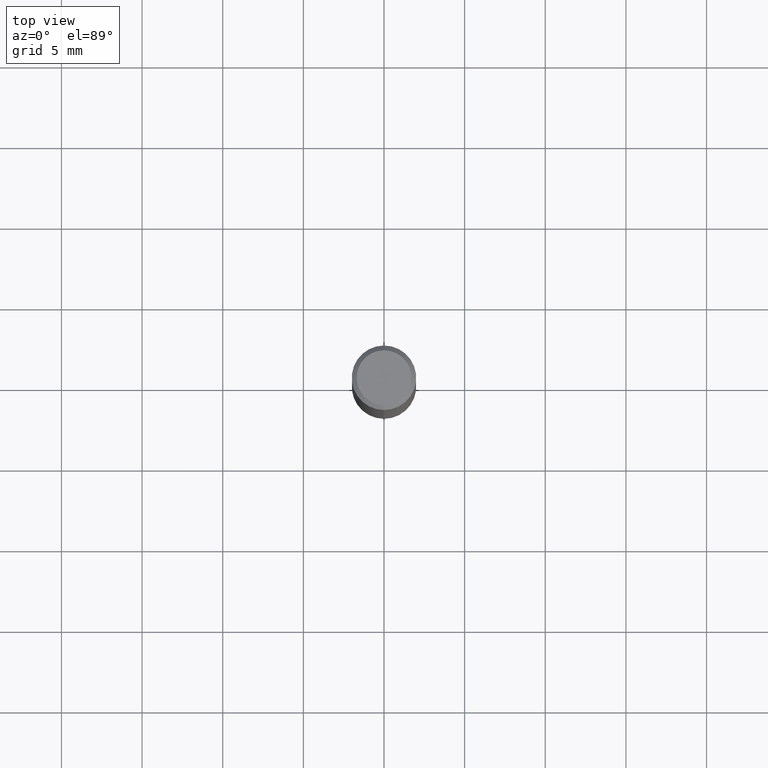
[diagram: clean part render]
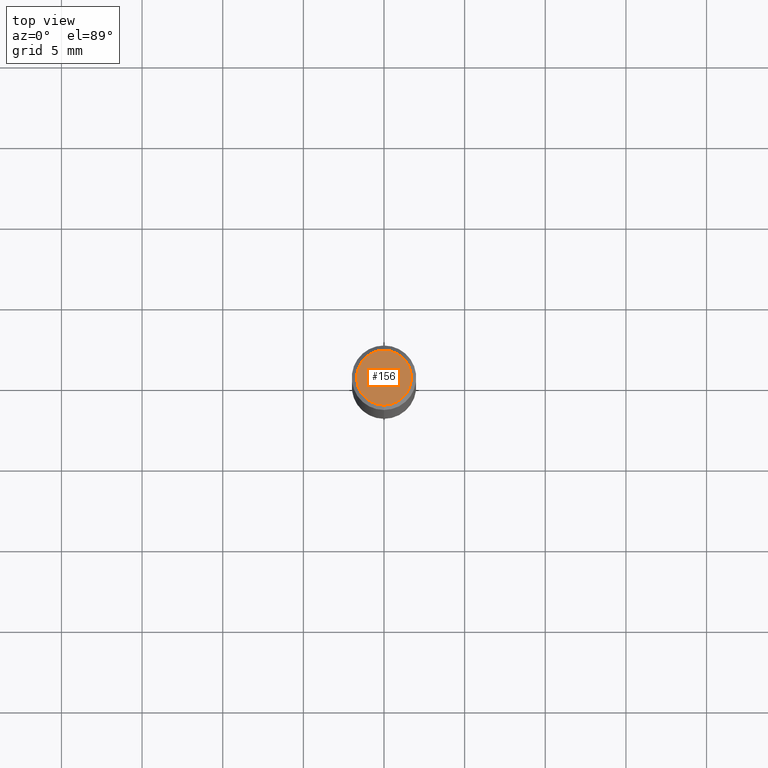
[diagram: same view with one face highlighted and labeled with its STEP entity id]
A machine part, top view. The second image highlights one B-rep face of the part: STEP entity #156.
In plain terms, the highlighted planar face has unit normal (-0, 0, 1).
Its self-contained STEP definition (entity closure, byte-faithful):
#100=VERTEX_POINT('',#238);
#138=EDGE_CURVE('',#154,#100,#281,.T.);
#146=EDGE_CURVE('',#100,#154,#289,.T.);
#154=VERTEX_POINT('',#297);
#156=ADVANCED_FACE('',(#299),#300,.T.);
#238=CARTESIAN_POINT('',(2.08183080149804E-016,-1.7,0.0));
#281=CIRCLE('',#443,1.7);
#289=CIRCLE('',#453,1.7);
#297=CARTESIAN_POINT('',(0.0,1.7,0.0));
#299=FACE_OUTER_BOUND('',#465,.T.);
#300=PLANE('',#466);
#443=AXIS2_PLACEMENT_3D('',#613,#614,#615);
#453=AXIS2_PLACEMENT_3D('',#619,#620,#621);
#465=EDGE_LOOP('',(#624,#625));
#466=AXIS2_PLACEMENT_3D('',#626,#627,#628);
#613=CARTESIAN_POINT('',(0.0,0.0,0.0));
#614=DIRECTION('',(0.0,0.0,-1.0));
#615=DIRECTION('',(0.0,1.0,0.0));
#619=CARTESIAN_POINT('',(0.0,0.0,0.0));
#620=DIRECTION('',(0.0,0.0,-1.0));
#621=DIRECTION('',(0.0,1.0,0.0));
#624=ORIENTED_EDGE('',*,*,#138,.F.);
#625=ORIENTED_EDGE('',*,*,#146,.F.);
#626=CARTESIAN_POINT('',(0.0,0.85,0.0));
#627=DIRECTION('',(-0.0,0.0,1.0));
#628=DIRECTION('',(0.0,-1.0,0.0));